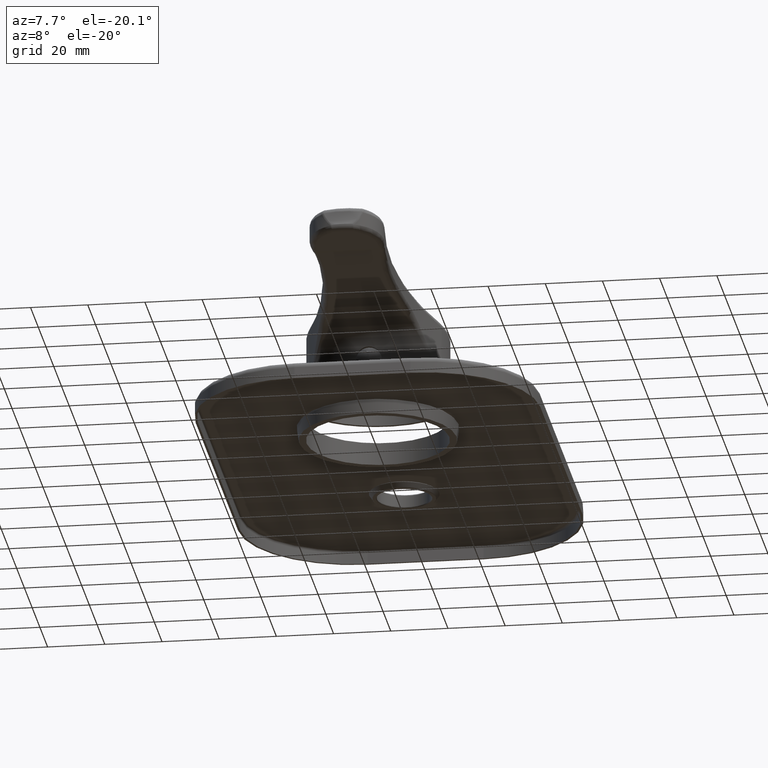
[diagram: clean part render]
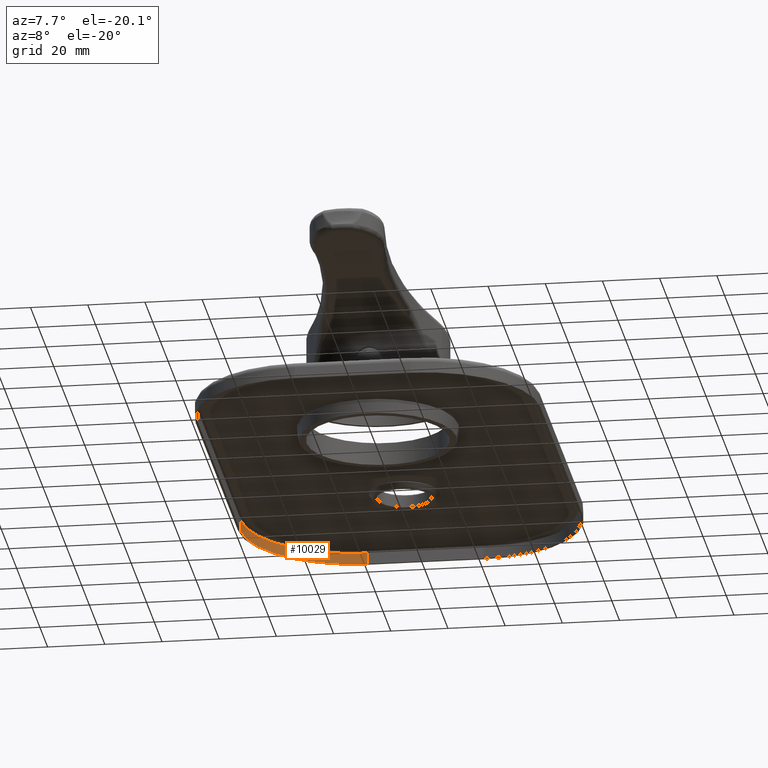
[diagram: same view with one face highlighted and labeled with its STEP entity id]
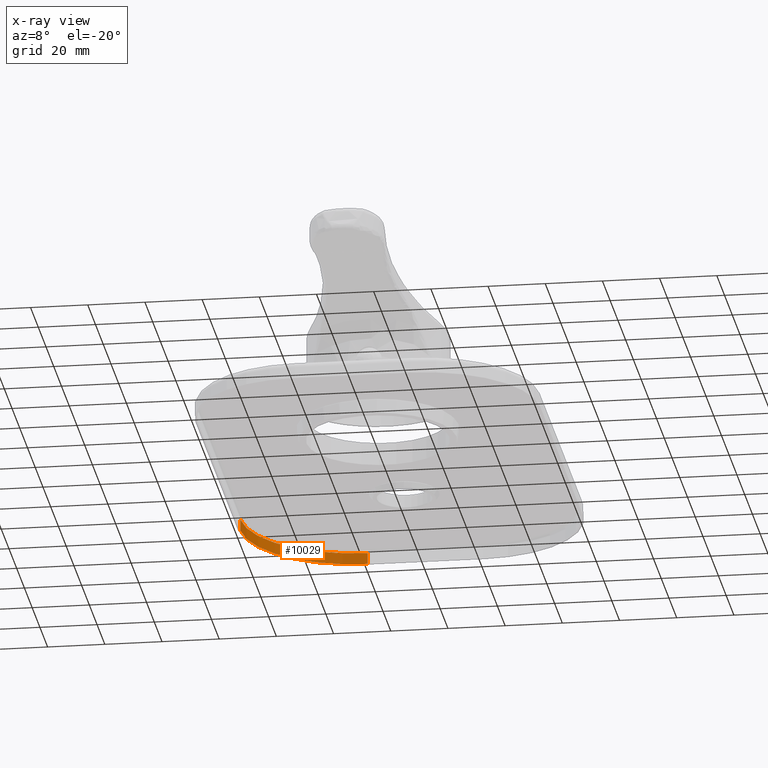
[diagram: x-ray of the same camera — body ghosted, the highlighted face saturated]
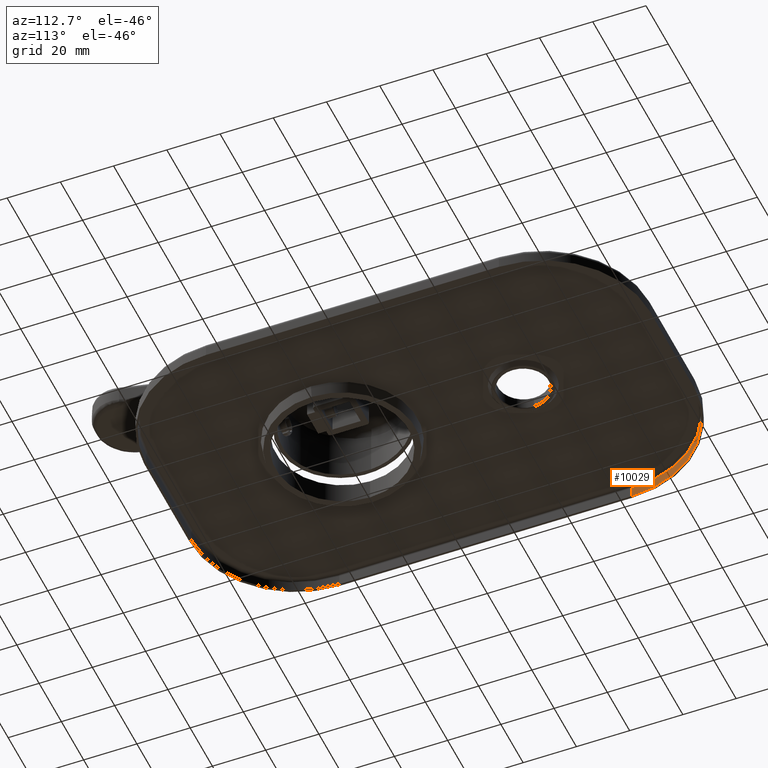
[diagram: same view with one face highlighted and labeled with its STEP entity id]
A machine part, auxiliary view. The second image highlights one B-rep face of the part: STEP entity #10029.
The next image is the same camera in x-ray: the body ghosted, the highlighted face saturated — about 0% of this face is hidden behind the body in this view.
A second angle (auxiliary view) of the same face is appended — the face is thin or edge-on in the first view.
In plain terms, the highlighted cylindrical surface (partial cylindrical patch) has radius 39.2 mm, axis along (0, 0, -1).
Its self-contained STEP definition (entity closure, byte-faithful):
#8842=CARTESIAN_POINT('',(-2.025E1,8.3E1,-1.E1));
#8843=DIRECTION('',(0.E0,0.E0,-1.E0));
#8844=DIRECTION('',(-1.E0,0.E0,0.E0));
#8845=AXIS2_PLACEMENT_3D('',#8842,#8843,#8844);
#8847=DIRECTION('',(-2.040145830051E-12,0.E0,-1.E0));
#8848=VECTOR('',#8847,4.E0);
#8849=CARTESIAN_POINT('',(-2.024999999999E1,1.222E2,-6.E0));
#8850=LINE('',#8849,#8848);
#8859=CARTESIAN_POINT('',(-2.025E1,8.3E1,-6.E0));
#8860=DIRECTION('',(0.E0,0.E0,1.E0));
#8861=DIRECTION('',(0.E0,1.E0,0.E0));
#8862=AXIS2_PLACEMENT_3D('',#8859,#8860,#8861);
#8872=DIRECTION('',(0.E0,1.168842800325E-12,-1.E0));
#8873=VECTOR('',#8872,4.E0);
#8874=CARTESIAN_POINT('',(-5.945E1,8.3E1,-6.E0));
#8875=LINE('',#8874,#8873);
#9292=CARTESIAN_POINT('',(-2.024999999999E1,1.222E2,-6.E0));
#9293=VERTEX_POINT('',#9292);
#9296=CARTESIAN_POINT('',(-5.945E1,8.3E1,-6.E0));
#9297=VERTEX_POINT('',#9296);
#9303=CARTESIAN_POINT('',(-2.025E1,1.222E2,-1.E1));
#9305=VERTEX_POINT('',#9303);
#9306=CARTESIAN_POINT('',(-5.945E1,8.3E1,-1.E1));
#9308=VERTEX_POINT('',#9306);
#10016=CARTESIAN_POINT('',(-2.025E1,8.3E1,4.47032E1));
#10017=DIRECTION('',(0.E0,0.E0,-1.E0));
#10018=DIRECTION('',(-1.E0,0.E0,0.E0));
#10019=AXIS2_PLACEMENT_3D('',#10016,#10017,#10018);
#10020=CYLINDRICAL_SURFACE('',#10019,3.92E1);
#10021=ORIENTED_EDGE('',*,*,#9982,.F.);
#10023=ORIENTED_EDGE('',*,*,#10022,.F.);
#10025=ORIENTED_EDGE('',*,*,#10024,.F.);
#10026=ORIENTED_EDGE('',*,*,#10000,.T.);
#10027=EDGE_LOOP('',(#10021,#10023,#10025,#10026));
#10028=FACE_OUTER_BOUND('',#10027,.F.);
#10029=ADVANCED_FACE('',(#10028),#10020,.F.);
#8846=CIRCLE('',#8845,3.92E1);
#8863=CIRCLE('',#8862,3.92E1);
#9982=EDGE_CURVE('',#9308,#9305,#8846,.T.);
#10000=EDGE_CURVE('',#9293,#9305,#8850,.T.);
#10022=EDGE_CURVE('',#9297,#9308,#8875,.T.);
#10024=EDGE_CURVE('',#9293,#9297,#8863,.T.);